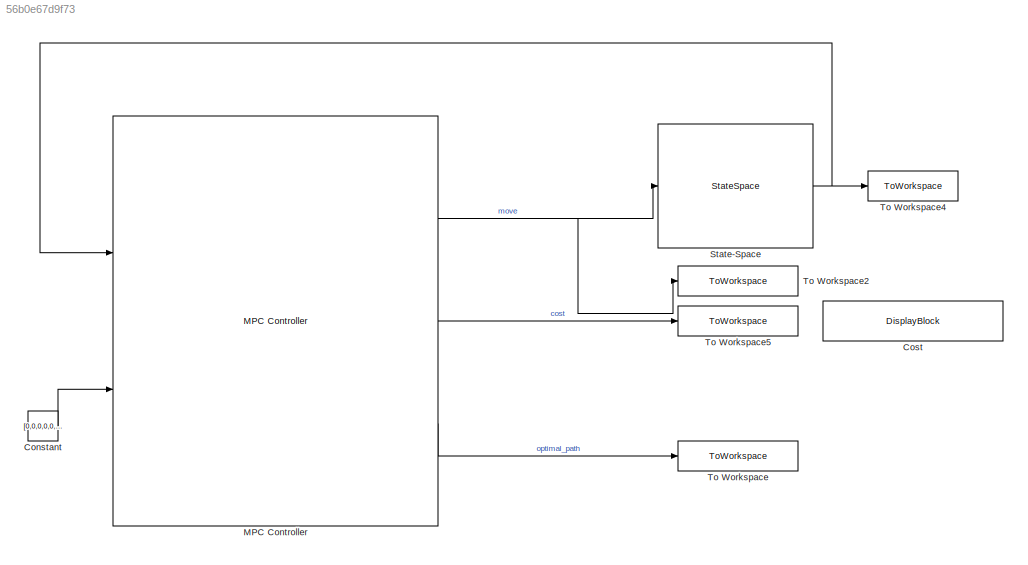
MODEL slx_56b0e67d9f73
KIND model
CONFIG AbsTol = auto
CONFIG EnableMultiTasking = off
CONFIG FixedStep = auto
CONFIG MaxStep = auto
CONFIG MinStep = auto
CONFIG RelTol = 1e-3
CONFIG SampleTimeConstraint = Unconstrained
CONFIG SolverName = VariableStepAuto
CONFIG StartTime = 0.0
CONFIG StopTime = 10
BLOCK [Constant] Constant
  Value = [0,0,0,0,0,0]
BLOCK [DisplayBlock] Cost
  Format = shortEng
  LabelPosition = Hide
  Transparency = 1
BLOCK [Reference] MPC Controller  REF=mpclib/MPC Controller  (lib defined in mdl_ae329e0e0455)
  Ports = [2, 3]
  SCDEnableBlockLinearizationSpecification = on
  SourceBlock = mpclib/MPC Controller
  SourceProductBaseCode = MP
  SourceType = MPC
BLOCK [StateSpace] State-Space
  A = A
  B = B
  C = C
  D = D
  InitialCondition = x0(i,:)
  Ports = [1, 1]
BLOCK [ToWorkspace] To Workspace
  FixptAsFi = on
  MaxDataPoints = inf
  Ports = [1]
  SampleTime = tstep
  VariableName = optimal_path
BLOCK [ToWorkspace] To Workspace2
  FixptAsFi = on
  MaxDataPoints = inf
  Ports = [1]
  SampleTime = tstep
  VariableName = move
BLOCK [ToWorkspace] To Workspace4
  FixptAsFi = on
  MaxDataPoints = inf
  Ports = [1]
  SampleTime = tstep
  VariableName = response
BLOCK [ToWorkspace] To Workspace5
  FixptAsFi = on
  MaxDataPoints = inf
  Ports = [1]
  SampleTime = tstep
  SaveFormat = Timeseries
  VariableName = cost
LINE Constant:1 -> MPC Controller:2
NET MPC Controller:1 -> State-Space:1, To Workspace2:1
LINE MPC Controller:2 -> To Workspace5:1
LINE MPC Controller:3 -> To Workspace:1
NET State-Space:1 -> MPC Controller:1, To Workspace4:1
note: NET lines group one-source signal fan-out (src -> all destinations, sorted); 1:1 wires keep LINE
